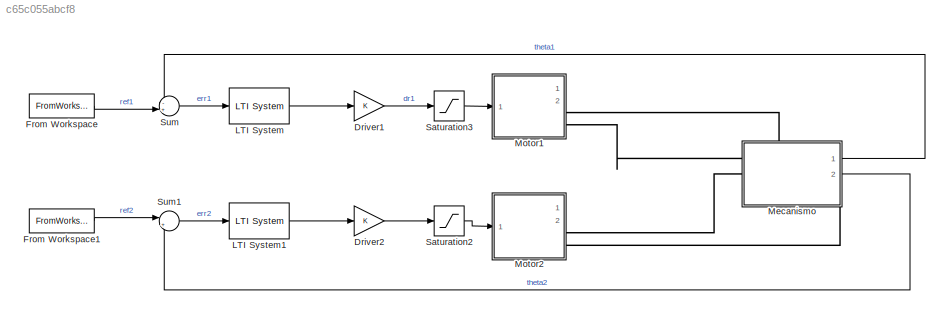
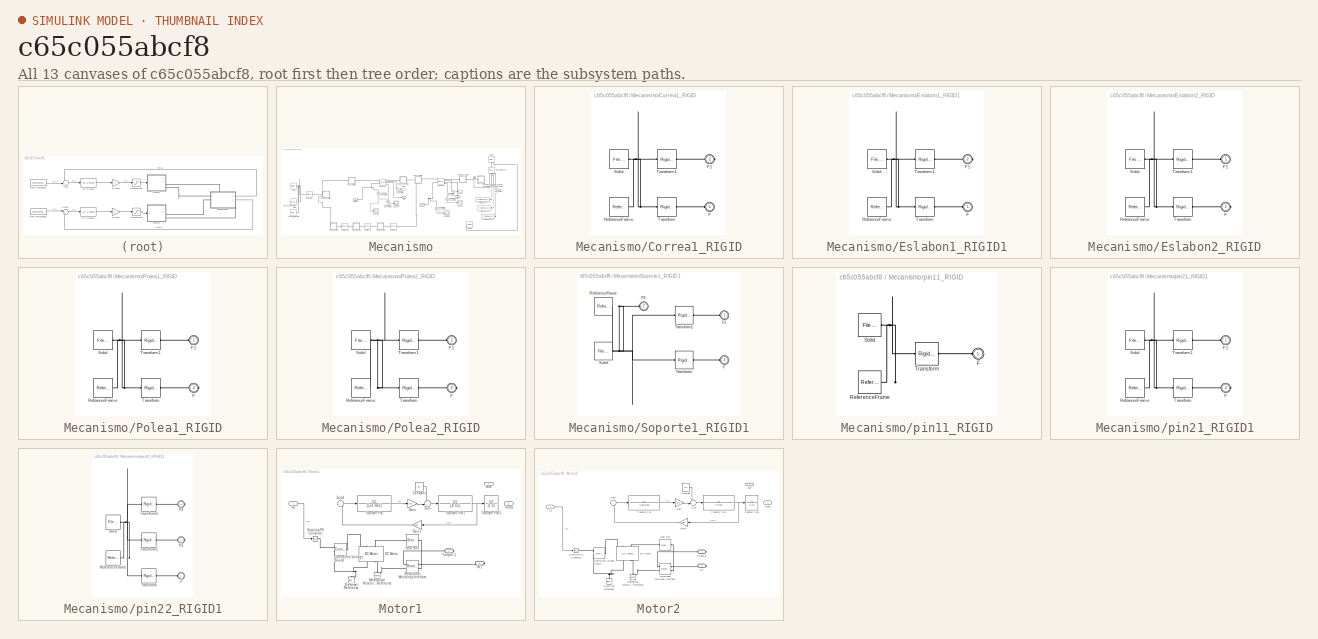
[diagram: thumbnail index - all 13 canvases of the model, root first then tree order]
MODEL slx_c65c055abcf8
KIND model
CONFIG AbsTol = auto
CONFIG EnableMultiTasking = off
CONFIG FixedStep = auto
CONFIG MaxStep = auto
CONFIG MinStep = auto
CONFIG RelTol = 1e-4
CONFIG SampleTimeConstraint = Unconstrained
CONFIG SolverName = VariableStepAuto
CONFIG StartTime = 0.0
CONFIG StopTime = 29.3
WORKSPACE source: external: MATLAB File  (data not in archive)
BLOCK [Gain] Driver1
BLOCK [Gain] Driver2
BLOCK [FromWorkspace] From Workspace
  SampleTime = -1
  VariableName = input_a1
BLOCK [FromWorkspace] From Workspace1
  SampleTime = -1
  VariableName = input_a2
BLOCK [Reference] LTI System  REF=cstblocks/LTI System
  Ports = [1, 1]
  SourceBlock = cstblocks/LTI System
  SourceProductBaseCode = CT
  SourceType = LTI Block
BLOCK [Reference] LTI System1  REF=cstblocks/LTI System
  Ports = [1, 1]
  SourceBlock = cstblocks/LTI System
  SourceProductBaseCode = CT
  SourceType = LTI Block
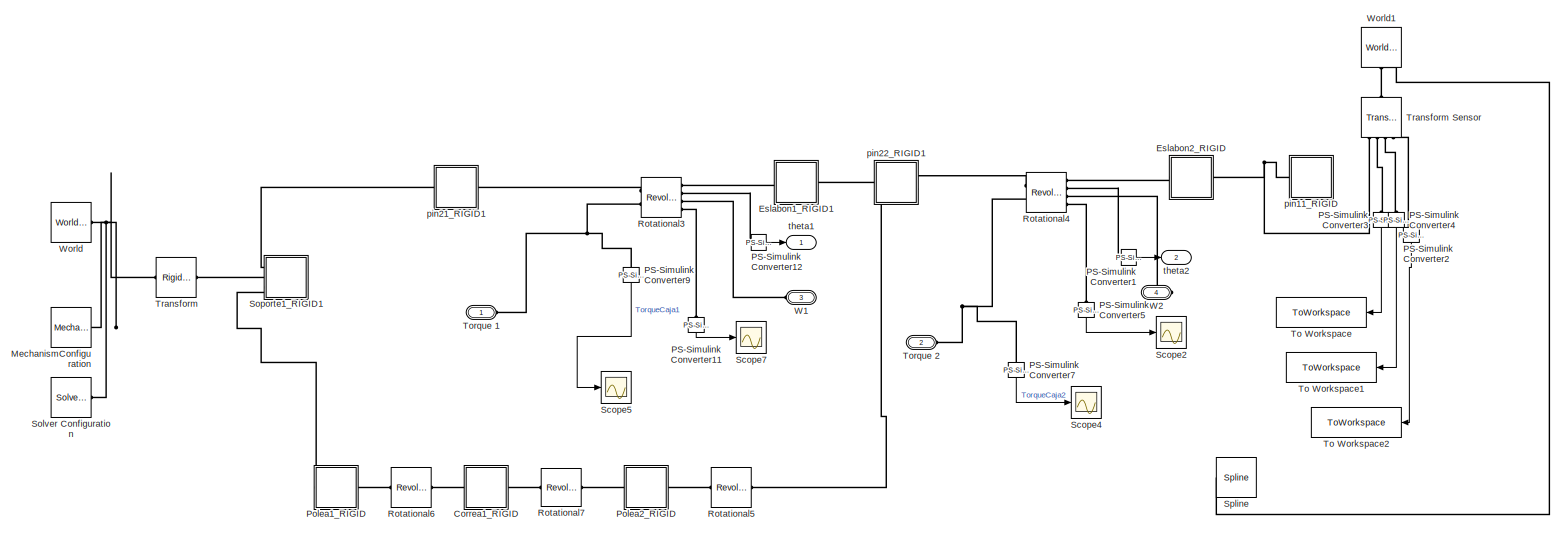
[diagram: Mecanismo - part 1/1, most of the canvas]
BLOCK [SubSystem] Mecanismo
  PortSchema = {"entries":[{"content":{"sides":[{"content":{"connectorIds":["LConn1","LConn2"]},"type":"ConnectorPlacement.EquallySpacedRectSide","uuid":"9c71d8fd-fbe0-4f3c-9468-4cd11dffeed7"},{"content":{"connectorIds":["Out1","Out2","RConn1"],"side":"RIGHT"},"type":"ConnectorPlacement.EquallySpacedRectSide","uuid":"5c6e91e5-ecd9-462c-8e86-99a56f5a5e98"},{"content":{"connectorIds":["LConn3"],"side":"TOP"},"type...<+420ch>
  Ports = [0, 2, 0, 0, 0, 3, 1]
  RequestExecContextInheritance = off
BLOCK [SubSystem] Mecanismo/Correa1_RIGID
  Ports = [0, 0, 0, 0, 0, 1, 1]
  RequestExecContextInheritance = off
BLOCK [PMIOPort] Mecanismo/Correa1_RIGID/F
  Side = Left
BLOCK [PMIOPort] Mecanismo/Correa1_RIGID/F1
  Port = 2
  Side = Right
BLOCK [Reference] Mecanismo/Correa1_RIGID/ReferenceFrame  REF=sm_lib/Frames and
Transforms/Reference
Frame
  Ports = [0, 0, 0, 0, 0, 0, 1]
  SourceBlock = sm_lib/Frames and\nTransforms/Reference\nFrame
  SourceProductBaseCode = MS
  SourceType = Reference\nFrame
BLOCK [Reference] Mecanismo/Correa1_RIGID/Solid  REF=sm_lib/Body Elements/File Solid
  Ports = [0, 0, 0, 0, 0, 0, 1]
  SourceBlock = sm_lib/Body Elements/File Solid
  SourceProductBaseCode = MS
  SourceType = File Solid
BLOCK [Reference] Mecanismo/Correa1_RIGID/Transform  REF=sm_lib/Frames and
Transforms/Rigid
Transform
  Ports = [0, 0, 0, 0, 0, 1, 1]
  SourceBlock = sm_lib/Frames and\nTransforms/Rigid\nTransform
  SourceProductBaseCode = MS
  SourceType = Rigid\nTransform
BLOCK [Reference] Mecanismo/Correa1_RIGID/Transform1  REF=sm_lib/Frames and
Transforms/Rigid
Transform
  Ports = [0, 0, 0, 0, 0, 1, 1]
  SourceBlock = sm_lib/Frames and\nTransforms/Rigid\nTransform
  SourceProductBaseCode = MS
  SourceType = Rigid\nTransform
BLOCK [SubSystem] Mecanismo/Eslabon1_RIGID1
  Ports = [0, 0, 0, 0, 0, 1, 1]
  RequestExecContextInheritance = off
BLOCK [PMIOPort] Mecanismo/Eslabon1_RIGID1/F
  Side = Left
BLOCK [PMIOPort] Mecanismo/Eslabon1_RIGID1/F1
  Port = 2
  Side = Right
BLOCK [Reference] Mecanismo/Eslabon1_RIGID1/ReferenceFrame  REF=sm_lib/Frames and
Transforms/Reference
Frame
  Ports = [0, 0, 0, 0, 0, 0, 1]
  SourceBlock = sm_lib/Frames and\nTransforms/Reference\nFrame
  SourceProductBaseCode = MS
  SourceType = Reference\nFrame
BLOCK [Reference] Mecanismo/Eslabon1_RIGID1/Solid  REF=sm_lib/Body Elements/File Solid
  Ports = [0, 0, 0, 0, 0, 0, 1]
  SourceBlock = sm_lib/Body Elements/File Solid
  SourceProductBaseCode = MS
  SourceType = File Solid
BLOCK [Reference] Mecanismo/Eslabon1_RIGID1/Transform  REF=sm_lib/Frames and
Transforms/Rigid
Transform
  Ports = [0, 0, 0, 0, 0, 1, 1]
  SourceBlock = sm_lib/Frames and\nTransforms/Rigid\nTransform
  SourceProductBaseCode = MS
  SourceType = Rigid\nTransform
BLOCK [Reference] Mecanismo/Eslabon1_RIGID1/Transform1  REF=sm_lib/Frames and
Transforms/Rigid
Transform
  Ports = [0, 0, 0, 0, 0, 1, 1]
  SourceBlock = sm_lib/Frames and\nTransforms/Rigid\nTransform
  SourceProductBaseCode = MS
  SourceType = Rigid\nTransform
BLOCK [SubSystem] Mecanismo/Eslabon2_RIGID
  Ports = [0, 0, 0, 0, 0, 1, 1]
  RequestExecContextInheritance = off
BLOCK [PMIOPort] Mecanismo/Eslabon2_RIGID/F
  Port = 2
  Side = Right
BLOCK [PMIOPort] Mecanismo/Eslabon2_RIGID/F1
  Side = Left
BLOCK [Reference] Mecanismo/Eslabon2_RIGID/ReferenceFrame  REF=sm_lib/Frames and
Transforms/Reference
Frame
  Ports = [0, 0, 0, 0, 0, 0, 1]
  SourceBlock = sm_lib/Frames and\nTransforms/Reference\nFrame
  SourceProductBaseCode = MS
  SourceType = Reference\nFrame
BLOCK [Reference] Mecanismo/Eslabon2_RIGID/Solid  REF=sm_lib/Body Elements/File Solid
  Ports = [0, 0, 0, 0, 0, 0, 1]
  SourceBlock = sm_lib/Body Elements/File Solid
  SourceProductBaseCode = MS
  SourceType = File Solid
BLOCK [Reference] Mecanismo/Eslabon2_RIGID/Transform  REF=sm_lib/Frames and
Transforms/Rigid
Transform
  Ports = [0, 0, 0, 0, 0, 1, 1]
  SourceBlock = sm_lib/Frames and\nTransforms/Rigid\nTransform
  SourceProductBaseCode = MS
  SourceType = Rigid\nTransform
BLOCK [Reference] Mecanismo/Eslabon2_RIGID/Transform1  REF=sm_lib/Frames and
Transforms/Rigid
Transform
  Ports = [0, 0, 0, 0, 0, 1, 1]
  SourceBlock = sm_lib/Frames and\nTransforms/Rigid\nTransform
  SourceProductBaseCode = MS
  SourceType = Rigid\nTransform
BLOCK [Reference] Mecanismo/MechanismConfiguration  REF=sm_lib/Utilities/Mechanism
Configuration
  Ports = [0, 0, 0, 0, 0, 0, 1]
  SourceBlock = sm_lib/Utilities/Mechanism\nConfiguration
  SourceProductBaseCode = MS
  SourceType = Mechanism\nConfiguration
BLOCK [Reference] Mecanismo/PS-Simulink Converter1  REF=nesl_utility/PS-Simulink
Converter
  Ports = [0, 1, 0, 0, 0, 1]
  SourceBlock = nesl_utility/PS-Simulink\nConverter
  SourceProductBaseCode = PW,SS
  SourceType = PS-Simulink\nConverter
BLOCK [Reference] Mecanismo/PS-Simulink Converter11  REF=nesl_utility/PS-Simulink
Converter
  NameLocation = left
  Ports = [0, 1, 0, 0, 0, 1]
  SourceBlock = nesl_utility/PS-Simulink\nConverter
  SourceProductBaseCode = PW,SS
  SourceType = PS-Simulink\nConverter
BLOCK [Reference] Mecanismo/PS-Simulink Converter12  REF=nesl_utility/PS-Simulink
Converter
  Ports = [0, 1, 0, 0, 0, 1]
  SourceBlock = nesl_utility/PS-Simulink\nConverter
  SourceProductBaseCode = PW,SS
  SourceType = PS-Simulink\nConverter
BLOCK [Reference] Mecanismo/PS-Simulink Converter2  REF=nesl_utility/PS-Simulink
Converter
  NameLocation = left
  Ports = [0, 1, 0, 0, 0, 1]
  SourceBlock = nesl_utility/PS-Simulink\nConverter
  SourceProductBaseCode = PW,SS
  SourceType = PS-Simulink\nConverter
BLOCK [Reference] Mecanismo/PS-Simulink Converter3  REF=nesl_utility/PS-Simulink
Converter
  NameLocation = left
  Ports = [0, 1, 0, 0, 0, 1]
  SourceBlock = nesl_utility/PS-Simulink\nConverter
  SourceProductBaseCode = PW,SS
  SourceType = PS-Simulink\nConverter
BLOCK [Reference] Mecanismo/PS-Simulink Converter4  REF=nesl_utility/PS-Simulink
Converter
  NameLocation = left
  Ports = [0, 1, 0, 0, 0, 1]
  SourceBlock = nesl_utility/PS-Simulink\nConverter
  SourceProductBaseCode = PW,SS
  SourceType = PS-Simulink\nConverter
BLOCK [Reference] Mecanismo/PS-Simulink Converter5  REF=nesl_utility/PS-Simulink
Converter
  NameLocation = left
  Ports = [0, 1, 0, 0, 0, 1]
  SourceBlock = nesl_utility/PS-Simulink\nConverter
  SourceProductBaseCode = PW,SS
  SourceType = PS-Simulink\nConverter
BLOCK [Reference] Mecanismo/PS-Simulink Converter7  REF=nesl_utility/PS-Simulink
Converter
  NameLocation = left
  Ports = [0, 1, 0, 0, 0, 1]
  SourceBlock = nesl_utility/PS-Simulink\nConverter
  SourceProductBaseCode = PW,SS
  SourceType = PS-Simulink\nConverter
BLOCK [Reference] Mecanismo/PS-Simulink Converter9  REF=nesl_utility/PS-Simulink
Converter
  NameLocation = left
  Ports = [0, 1, 0, 0, 0, 1]
  SourceBlock = nesl_utility/PS-Simulink\nConverter
  SourceProductBaseCode = PW,SS
  SourceType = PS-Simulink\nConverter
BLOCK [SubSystem] Mecanismo/Polea1_RIGID
  Ports = [0, 0, 0, 0, 0, 1, 1]
  RequestExecContextInheritance = off
BLOCK [PMIOPort] Mecanismo/Polea1_RIGID/F
  Port = 2
  Side = Right
BLOCK [PMIOPort] Mecanismo/Polea1_RIGID/F1
  Side = Left
BLOCK [Reference] Mecanismo/Polea1_RIGID/ReferenceFrame  REF=sm_lib/Frames and
Transforms/Reference
Frame
  Ports = [0, 0, 0, 0, 0, 0, 1]
  SourceBlock = sm_lib/Frames and\nTransforms/Reference\nFrame
  SourceProductBaseCode = MS
  SourceType = Reference\nFrame
BLOCK [Reference] Mecanismo/Polea1_RIGID/Solid  REF=sm_lib/Body Elements/File Solid
  Ports = [0, 0, 0, 0, 0, 0, 1]
  SourceBlock = sm_lib/Body Elements/File Solid
  SourceProductBaseCode = MS
  SourceType = File Solid
BLOCK [Reference] Mecanismo/Polea1_RIGID/Transform  REF=sm_lib/Frames and
Transforms/Rigid
Transform
  Ports = [0, 0, 0, 0, 0, 1, 1]
  SourceBlock = sm_lib/Frames and\nTransforms/Rigid\nTransform
  SourceProductBaseCode = MS
  SourceType = Rigid\nTransform
BLOCK [Reference] Mecanismo/Polea1_RIGID/Transform1  REF=sm_lib/Frames and
Transforms/Rigid
Transform
  Ports = [0, 0, 0, 0, 0, 1, 1]
  SourceBlock = sm_lib/Frames and\nTransforms/Rigid\nTransform
  SourceProductBaseCode = MS
  SourceType = Rigid\nTransform
BLOCK [SubSystem] Mecanismo/Polea2_RIGID
  NameLocation = top
  Ports = [0, 0, 0, 0, 0, 1, 1]
  RequestExecContextInheritance = off
BLOCK [PMIOPort] Mecanismo/Polea2_RIGID/F
  Port = 2
  Side = Right
BLOCK [PMIOPort] Mecanismo/Polea2_RIGID/F1
  Side = Left
BLOCK [Reference] Mecanismo/Polea2_RIGID/ReferenceFrame  REF=sm_lib/Frames and
Transforms/Reference
Frame
  Ports = [0, 0, 0, 0, 0, 0, 1]
  SourceBlock = sm_lib/Frames and\nTransforms/Reference\nFrame
  SourceProductBaseCode = MS
  SourceType = Reference\nFrame
BLOCK [Reference] Mecanismo/Polea2_RIGID/Solid  REF=sm_lib/Body Elements/File Solid
  Ports = [0, 0, 0, 0, 0, 0, 1]
  SourceBlock = sm_lib/Body Elements/File Solid
  SourceProductBaseCode = MS
  SourceType = File Solid
BLOCK [Reference] Mecanismo/Polea2_RIGID/Transform  REF=sm_lib/Frames and
Transforms/Rigid
Transform
  Ports = [0, 0, 0, 0, 0, 1, 1]
  SourceBlock = sm_lib/Frames and\nTransforms/Rigid\nTransform
  SourceProductBaseCode = MS
  SourceType = Rigid\nTransform
BLOCK [Reference] Mecanismo/Polea2_RIGID/Transform1  REF=sm_lib/Frames and
Transforms/Rigid
Transform
  Ports = [0, 0, 0, 0, 0, 1, 1]
  SourceBlock = sm_lib/Frames and\nTransforms/Rigid\nTransform
  SourceProductBaseCode = MS
  SourceType = Rigid\nTransform
BLOCK [Reference] Mecanismo/Rotational3  REF=sm_lib/Joints/Revolute Joint
  Ports = [0, 0, 0, 0, 0, 2, 4]
  SourceBlock = sm_lib/Joints/Revolute Joint
  SourceProductBaseCode = MS
  SourceType = Revolute Joint
BLOCK [Reference] Mecanismo/Rotational4  REF=sm_lib/Joints/Revolute Joint
  Ports = [0, 0, 0, 0, 0, 2, 4]
  SourceBlock = sm_lib/Joints/Revolute Joint
  SourceProductBaseCode = MS
  SourceType = Revolute Joint
BLOCK [Reference] Mecanismo/Rotational5  REF=sm_lib/Joints/Revolute Joint
  NameLocation = top
  Ports = [0, 0, 0, 0, 0, 1, 1]
  SourceBlock = sm_lib/Joints/Revolute Joint
  SourceProductBaseCode = MS
  SourceType = Revolute Joint
BLOCK [Reference] Mecanismo/Rotational6  REF=sm_lib/Joints/Revolute Joint
  Ports = [0, 0, 0, 0, 0, 1, 1]
  SourceBlock = sm_lib/Joints/Revolute Joint
  SourceProductBaseCode = MS
  SourceType = Revolute Joint
BLOCK [Reference] Mecanismo/Rotational7  REF=sm_lib/Joints/Revolute Joint
  NameLocation = top
  Ports = [0, 0, 0, 0, 0, 1, 1]
  SourceBlock = sm_lib/Joints/Revolute Joint
  SourceProductBaseCode = MS
  SourceType = Revolute Joint
BLOCK [Scope] Mecanismo/Scope2
  Floating = off
  NumInputPorts = 1
  Ports = [1]
  ScopeSpecificationString = Simulink.scopes.TimeScopeBlockCfg('CurrentConfiguration', extmgr.ConfigurationSet(extmgr.Configuration('Core','General UI',true),extmgr.Configuration('Core','Source UI',true),extmgr.Configuration('Sources','WiredSimulink',true,'DataLoggingVariableName','ScopeData1'),extmgr.Configuration('Visuals','Time Domain',true,'SerializedDisplays',{struct('MinYLimReal','-0.05482','MaxYLimReal','0.08539','YLab...<+1381ch>
BLOCK [Scope] Mecanismo/Scope4
  Floating = off
  NumInputPorts = 1
  Ports = [1]
  ScopeSpecificationString = Simulink.scopes.TimeScopeBlockCfg('CurrentConfiguration', extmgr.ConfigurationSet(extmgr.Configuration('Core','General UI',true),extmgr.Configuration('Core','Source UI',true),extmgr.Configuration('Sources','WiredSimulink',true),extmgr.Configuration('Visuals','Time Domain',true,'SerializedDisplays',{struct('MinYLimReal','-1.00000','MaxYLimReal','1.00000','YLabelReal','','MinYLimMag','0.00000','MaxY...<+1404ch>
BLOCK [Scope] Mecanismo/Scope5
  Floating = off
  NumInputPorts = 1
  Ports = [1]
  ScopeSpecificationString = Simulink.scopes.TimeScopeBlockCfg('CurrentConfiguration', extmgr.ConfigurationSet(extmgr.Configuration('Core','General UI',true),extmgr.Configuration('Core','Source UI',true),extmgr.Configuration('Sources','WiredSimulink',true,'DataLoggingVariableName','ScopeData2'),extmgr.Configuration('Visuals','Time Domain',true,'SerializedDisplays',{struct('MinYLimReal','-12.39709','MaxYLimReal','13.11522','YL...<+1449ch>
BLOCK [Scope] Mecanismo/Scope7
  Floating = off
  NumInputPorts = 1
  Ports = [1]
  ScopeSpecificationString = Simulink.scopes.TimeScopeBlockCfg('CurrentConfiguration', extmgr.ConfigurationSet(extmgr.Configuration('Core','General UI',true),extmgr.Configuration('Core','Source UI',true),extmgr.Configuration('Sources','WiredSimulink',true,'DataLoggingVariableName','ScopeData4'),extmgr.Configuration('Visuals','Time Domain',true,'SerializedDisplays',{struct('MinYLimReal','-12.39709','MaxYLimReal','13.11522','YL...<+1460ch>
BLOCK [Reference] Mecanismo/Solver Configuration  REF=nesl_utility/Solver
Configuration
  Ports = [0, 0, 0, 0, 0, 0, 1]
  SourceBlock = nesl_utility/Solver\nConfiguration
  SourceProductBaseCode = PW,SS
  SourceType = Solver\nConfiguration
BLOCK [SubSystem] Mecanismo/Soporte1_RIGID1
  Ports = [0, 0, 0, 0, 0, 3]
  RequestExecContextInheritance = off
BLOCK [PMIOPort] Mecanismo/Soporte1_RIGID1/F
  Port = 3
  Side = Left
BLOCK [PMIOPort] Mecanismo/Soporte1_RIGID1/F1
  Side = Left
BLOCK [PMIOPort] Mecanismo/Soporte1_RIGID1/F2
  Port = 2
  Side = Left
BLOCK [Reference] Mecanismo/Soporte1_RIGID1/ReferenceFrame  REF=sm_lib/Frames and
Transforms/Reference
Frame
  Ports = [0, 0, 0, 0, 0, 0, 1]
  SourceBlock = sm_lib/Frames and\nTransforms/Reference\nFrame
  SourceProductBaseCode = MS
  SourceType = Reference\nFrame
BLOCK [Reference] Mecanismo/Soporte1_RIGID1/Solid  REF=sm_lib/Body Elements/File Solid
  Ports = [0, 0, 0, 0, 0, 0, 1]
  SourceBlock = sm_lib/Body Elements/File Solid
  SourceProductBaseCode = MS
  SourceType = File Solid
BLOCK [Reference] Mecanismo/Soporte1_RIGID1/Transform  REF=sm_lib/Frames and
Transforms/Rigid
Transform
  Ports = [0, 0, 0, 0, 0, 1, 1]
  SourceBlock = sm_lib/Frames and\nTransforms/Rigid\nTransform
  SourceProductBaseCode = MS
  SourceType = Rigid\nTransform
BLOCK [Reference] Mecanismo/Soporte1_RIGID1/Transform1  REF=sm_lib/Frames and
Transforms/Rigid
Transform
  Ports = [0, 0, 0, 0, 0, 1, 1]
  SourceBlock = sm_lib/Frames and\nTransforms/Rigid\nTransform
  SourceProductBaseCode = MS
  SourceType = Rigid\nTransform
BLOCK [Reference] Mecanismo/Spline  REF=sm_lib/Curves and Surfaces/Spline
  Ports = [0, 0, 0, 0, 0, 1, 1]
  SourceBlock = sm_lib/Curves and Surfaces/Spline
  SourceProductBaseCode = MS
  SourceType = Spline
BLOCK [ToWorkspace] Mecanismo/To Workspace
  FixptAsFi = on
  MaxDataPoints = inf
  NameLocation = top
  Ports = [1]
  SampleTime = -1
  SaveFormat = Timeseries
  VariableName = xsim
BLOCK [ToWorkspace] Mecanismo/To Workspace1
  FixptAsFi = on
  MaxDataPoints = inf
  NameLocation = top
  Ports = [1]
  SampleTime = -1
  SaveFormat = Timeseries
  VariableName = ysim
BLOCK [ToWorkspace] Mecanismo/To Workspace2
  FixptAsFi = on
  MaxDataPoints = inf
  NameLocation = top
  Ports = [1]
  SampleTime = -1
  SaveFormat = Timeseries
  VariableName = zsim
BLOCK [PMIOPort] Mecanismo/Torque 1
  Side = Left
BLOCK [PMIOPort] Mecanismo/Torque 2
  Port = 2
  Side = Left
BLOCK [Reference] Mecanismo/Transform  REF=sm_lib/Frames and
Transforms/Rigid
Transform
  Ports = [0, 0, 0, 0, 0, 1, 1]
  SourceBlock = sm_lib/Frames and\nTransforms/Rigid\nTransform
  SourceProductBaseCode = MS
  SourceType = Rigid\nTransform
BLOCK [Reference] Mecanismo/Transform Sensor  REF=sm_lib/Frames and
Transforms/Transform
Sensor
  NameLocation = left
  Ports = [0, 0, 0, 0, 0, 1, 4]
  SourceBlock = sm_lib/Frames and\nTransforms/Transform\nSensor
  SourceProductBaseCode = MS
  SourceType = Transform\nSensor
BLOCK [PMIOPort] Mecanismo/W1
  NameLocation = top
  Port = 3
  Side = Left
BLOCK [PMIOPort] Mecanismo/W2
  NameLocation = top
  Port = 4
  Side = Right
BLOCK [Reference] Mecanismo/World  REF=sm_lib/Frames and
Transforms/World Frame
  Ports = [0, 0, 0, 0, 0, 0, 1]
  SourceBlock = sm_lib/Frames and\nTransforms/World Frame
  SourceProductBaseCode = MS
  SourceType = World Frame
BLOCK [Reference] Mecanismo/World1  REF=sm_lib/Frames and
Transforms/World Frame
  NameLocation = left
  Ports = [0, 0, 0, 0, 0, 0, 1]
  SourceBlock = sm_lib/Frames and\nTransforms/World Frame
  SourceProductBaseCode = MS
  SourceType = World Frame
BLOCK [SubSystem] Mecanismo/pin11_RIGID
  Ports = [0, 0, 0, 0, 0, 1]
  RequestExecContextInheritance = off
BLOCK [PMIOPort] Mecanismo/pin11_RIGID/F
  Side = Left
BLOCK [Reference] Mecanismo/pin11_RIGID/ReferenceFrame  REF=sm_lib/Frames and
Transforms/Reference
Frame
  Ports = [0, 0, 0, 0, 0, 0, 1]
  SourceBlock = sm_lib/Frames and\nTransforms/Reference\nFrame
  SourceProductBaseCode = MS
  SourceType = Reference\nFrame
BLOCK [Reference] Mecanismo/pin11_RIGID/Solid  REF=sm_lib/Body Elements/File Solid
  Ports = [0, 0, 0, 0, 0, 0, 1]
  SourceBlock = sm_lib/Body Elements/File Solid
  SourceProductBaseCode = MS
  SourceType = File Solid
BLOCK [Reference] Mecanismo/pin11_RIGID/Transform  REF=sm_lib/Frames and
Transforms/Rigid
Transform
  Ports = [0, 0, 0, 0, 0, 1, 1]
  SourceBlock = sm_lib/Frames and\nTransforms/Rigid\nTransform
  SourceProductBaseCode = MS
  SourceType = Rigid\nTransform
BLOCK [SubSystem] Mecanismo/pin21_RIGID1
  Ports = [0, 0, 0, 0, 0, 1, 1]
  RequestExecContextInheritance = off
BLOCK [PMIOPort] Mecanismo/pin21_RIGID1/F
  Port = 2
  Side = Right
BLOCK [PMIOPort] Mecanismo/pin21_RIGID1/F1
  Side = Left
BLOCK [Reference] Mecanismo/pin21_RIGID1/ReferenceFrame  REF=sm_lib/Frames and
Transforms/Reference
Frame
  Ports = [0, 0, 0, 0, 0, 0, 1]
  SourceBlock = sm_lib/Frames and\nTransforms/Reference\nFrame
  SourceProductBaseCode = MS
  SourceType = Reference\nFrame
BLOCK [Reference] Mecanismo/pin21_RIGID1/Solid  REF=sm_lib/Body Elements/File Solid
  Ports = [0, 0, 0, 0, 0, 0, 1]
  SourceBlock = sm_lib/Body Elements/File Solid
  SourceProductBaseCode = MS
  SourceType = File Solid
BLOCK [Reference] Mecanismo/pin21_RIGID1/Transform  REF=sm_lib/Frames and
Transforms/Rigid
Transform
  Ports = [0, 0, 0, 0, 0, 1, 1]
  SourceBlock = sm_lib/Frames and\nTransforms/Rigid\nTransform
  SourceProductBaseCode = MS
  SourceType = Rigid\nTransform
BLOCK [Reference] Mecanismo/pin21_RIGID1/Transform1  REF=sm_lib/Frames and
Transforms/Rigid
Transform
  Ports = [0, 0, 0, 0, 0, 1, 1]
  SourceBlock = sm_lib/Frames and\nTransforms/Rigid\nTransform
  SourceProductBaseCode = MS
  SourceType = Rigid\nTransform
BLOCK [SubSystem] Mecanismo/pin22_RIGID1
  PortSchema = {"entries":[{"content":{"sides":[{"content":{"connectorIds":["LConn1"]},"type":"ConnectorPlacement.EquallySpacedRectSide","uuid":"0c2e1053-8513-4509-bcb1-ddfb4a2ca896"},{"content":{"connectorIds":["RConn1"],"side":"RIGHT"},"type":"ConnectorPlacement.EquallySpacedRectSide","uuid":"556e465f-349c-4c01-b329-d5b95ce943a7"},{"content":{"connectorIds":[],"side":"TOP"},"type":"ConnectorPlacement.EquallySp...<+397ch>
  Ports = [0, 0, 0, 0, 0, 1, 2]
  RequestExecContextInheritance = off
BLOCK [PMIOPort] Mecanismo/pin22_RIGID1/F
  Side = Left
BLOCK [PMIOPort] Mecanismo/pin22_RIGID1/F1
  Port = 2
  Side = Right
BLOCK [PMIOPort] Mecanismo/pin22_RIGID1/F2
  Port = 3
  Side = Right
BLOCK [Reference] Mecanismo/pin22_RIGID1/ReferenceFrame  REF=sm_lib/Frames and
Transforms/Reference
Frame
  Ports = [0, 0, 0, 0, 0, 0, 1]
  SourceBlock = sm_lib/Frames and\nTransforms/Reference\nFrame
  SourceProductBaseCode = MS
  SourceType = Reference\nFrame
BLOCK [Reference] Mecanismo/pin22_RIGID1/Solid  REF=sm_lib/Body Elements/File Solid
  Ports = [0, 0, 0, 0, 0, 0, 1]
  SourceBlock = sm_lib/Body Elements/File Solid
  SourceProductBaseCode = MS
  SourceType = File Solid
BLOCK [Reference] Mecanismo/pin22_RIGID1/Transform  REF=sm_lib/Frames and
Transforms/Rigid
Transform
  Ports = [0, 0, 0, 0, 0, 1, 1]
  SourceBlock = sm_lib/Frames and\nTransforms/Rigid\nTransform
  SourceProductBaseCode = MS
  SourceType = Rigid\nTransform
BLOCK [Reference] Mecanismo/pin22_RIGID1/Transform1  REF=sm_lib/Frames and
Transforms/Rigid
Transform
  Ports = [0, 0, 0, 0, 0, 1, 1]
  SourceBlock = sm_lib/Frames and\nTransforms/Rigid\nTransform
  SourceProductBaseCode = MS
  SourceType = Rigid\nTransform
BLOCK [Reference] Mecanismo/pin22_RIGID1/Transform2  REF=sm_lib/Frames and
Transforms/Rigid
Transform
  Ports = [0, 0, 0, 0, 0, 1, 1]
  SourceBlock = sm_lib/Frames and\nTransforms/Rigid\nTransform
  SourceProductBaseCode = MS
  SourceType = Rigid\nTransform
BLOCK [Outport] Mecanismo/theta1
BLOCK [Outport] Mecanismo/theta2
  Port = 2
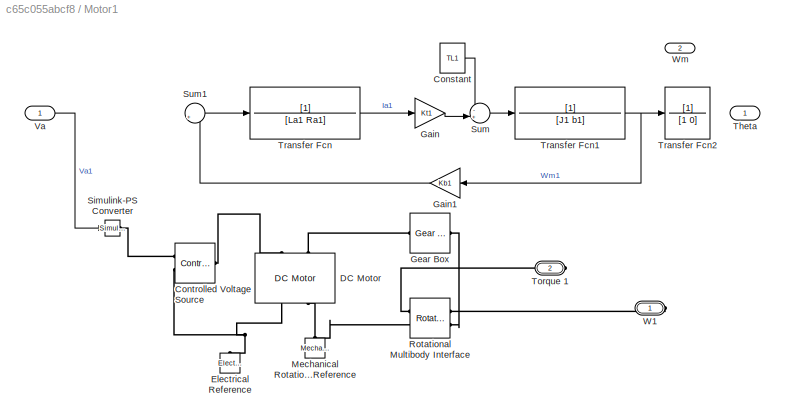
BLOCK [SubSystem] Motor1
  PortSchema = {"entries":[{"content":{"sides":[{"content":{"connectorIds":["In1"]},"type":"ConnectorPlacement.EquallySpacedRectSide","uuid":"969bf75e-6cfe-4396-8566-b009d760a095"},{"content":{"connectorIds":["Out1","RConn1","RConn2","Out2"],"side":"RIGHT"},"type":"ConnectorPlacement.EquallySpacedRectSide","uuid":"fb7f94df-b138-42ab-a30f-b7472fb0c0f2"},{"content":{"connectorIds":[],"side":"TOP"},"type":"Connecto...<+265ch>
  Ports = [1, 2, 0, 0, 0, 0, 2]
  RequestExecContextInheritance = off
BLOCK [Constant] Motor1/Constant
  Commented = on
  Value = TL1
BLOCK [Reference] Motor1/Controlled Voltage Source  REF=fl_lib/Electrical/Electrical Sources/Controlled Voltage
Source
  Ports = [0, 0, 0, 0, 0, 1, 2]
  SourceBlock = fl_lib/Electrical/Electrical Sources/Controlled Voltage\nSource
  SourceProductBaseCode = SS
  SourceType = Controlled Voltage\nSource
BLOCK [Reference] Motor1/DC Motor  REF=ee_lib/Electromechanical/Brushed Motors/DC Motor
  NameLocation = right
  Ports = [0, 0, 0, 0, 0, 2, 2]
  SourceBlock = ee_lib/Electromechanical/Brushed Motors/DC Motor
  SourceProductBaseCode = PS
  SourceType = DC Motor
BLOCK [Reference] Motor1/Electrical Reference  REF=fl_lib/Electrical/Electrical Elements/Electrical Reference
  NameLocation = right
  Ports = [0, 0, 0, 0, 0, 1]
  SourceBlock = fl_lib/Electrical/Electrical Elements/Electrical Reference
  SourceProductBaseCode = SS
  SourceType = Electrical Reference
BLOCK [Gain] Motor1/Gain
  Commented = on
  Gain = Kt1
BLOCK [Gain] Motor1/Gain1
  Commented = on
  Gain = Kb1
BLOCK [Reference] Motor1/Gear Box  REF=fl_lib/Mechanical/Mechanisms/Gear Box
  Ports = [0, 0, 0, 0, 0, 1, 1]
  SourceBlock = fl_lib/Mechanical/Mechanisms/Gear Box
  SourceProductBaseCode = SS
  SourceType = Gear Box
BLOCK [Reference] Motor1/Mechanical Rotational Reference  REF=fl_lib/Mechanical/Rotational Elements/Mechanical
Rotational Reference
  NameLocation = right
  Ports = [0, 0, 0, 0, 0, 1]
  SourceBlock = fl_lib/Mechanical/Rotational Elements/Mechanical\nRotational Reference
  SourceProductBaseCode = SS
  SourceType = Mechanical\nRotational Reference
BLOCK [Reference] Motor1/Rotational Multibody Interface  REF=fl_lib/Mechanical/Multibody Interfaces/Rotational Multibody
Interface
  Ports = [0, 0, 0, 0, 0, 2, 2]
  SourceBlock = fl_lib/Mechanical/Multibody Interfaces/Rotational Multibody\nInterface
  SourceProductBaseCode = SS
  SourceType = Rotational Multibody\nInterface
BLOCK [Reference] Motor1/Simulink-PS Converter  REF=nesl_utility/Simulink-PS
Converter
  Ports = [1, 0, 0, 0, 0, 0, 1]
  SourceBlock = nesl_utility/Simulink-PS\nConverter
  SourceProductBaseCode = PW,SS
  SourceType = Simulink-PS\nConverter
BLOCK [Sum] Motor1/Sum
  Commented = on
  Inputs = -+|
  Ports = [2, 1]
BLOCK [Sum] Motor1/Sum1
  Commented = on
  Inputs = |+-
  Ports = [2, 1]
BLOCK [Outport] Motor1/Theta
BLOCK [PMIOPort] Motor1/Torque 1
  NameLocation = top
  Port = 2
  Side = Right
BLOCK [TransferFcn] Motor1/Transfer Fcn
  Commented = on
  Denominator = [La1 Ra1]
BLOCK [TransferFcn] Motor1/Transfer Fcn1
  Commented = on
  Denominator = [J1 b1]
BLOCK [TransferFcn] Motor1/Transfer Fcn2
  Commented = on
  Denominator = [1 0]
BLOCK [Inport] Motor1/Va
BLOCK [PMIOPort] Motor1/W1
  NameLocation = top
  Side = Right
BLOCK [Outport] Motor1/Wm
  Port = 2
BLOCK [SubSystem] Motor2
  PortSchema = {"entries":[{"content":{"sides":[{"content":{"connectorIds":["In1"]},"type":"ConnectorPlacement.EquallySpacedRectSide","uuid":"969bf75e-6cfe-4396-8566-b009d760a095"},{"content":{"connectorIds":["Out1","RConn1","RConn2","Out2"],"side":"RIGHT"},"type":"ConnectorPlacement.EquallySpacedRectSide","uuid":"fb7f94df-b138-42ab-a30f-b7472fb0c0f2"},{"content":{"connectorIds":[],"side":"TOP"},"type":"Connecto...<+265ch>
  Ports = [1, 2, 0, 0, 0, 0, 2]
  RequestExecContextInheritance = off
BLOCK [Constant] Motor2/Constant
  Commented = on
  Value = TL2
BLOCK [Reference] Motor2/Controlled Voltage Source  REF=fl_lib/Electrical/Electrical Sources/Controlled Voltage
Source
  Ports = [0, 0, 0, 0, 0, 1, 2]
  SourceBlock = fl_lib/Electrical/Electrical Sources/Controlled Voltage\nSource
  SourceProductBaseCode = SS
  SourceType = Controlled Voltage\nSource
BLOCK [Reference] Motor2/DC Motor  REF=ee_lib/Electromechanical/Brushed Motors/DC Motor
  NameLocation = right
  Ports = [0, 0, 0, 0, 0, 2, 2]
  SourceBlock = ee_lib/Electromechanical/Brushed Motors/DC Motor
  SourceProductBaseCode = PS
  SourceType = DC Motor
BLOCK [Reference] Motor2/Electrical Reference  REF=fl_lib/Electrical/Electrical Elements/Electrical Reference
  NameLocation = right
  Ports = [0, 0, 0, 0, 0, 1]
  SourceBlock = fl_lib/Electrical/Electrical Elements/Electrical Reference
  SourceProductBaseCode = SS
  SourceType = Electrical Reference
BLOCK [Gain] Motor2/Gain
  Commented = on
  Gain = Kt2
BLOCK [Gain] Motor2/Gain1
  Commented = on
  Gain = Kb2
BLOCK [Reference] Motor2/Gear Box  REF=fl_lib/Mechanical/Mechanisms/Gear Box
  Ports = [0, 0, 0, 0, 0, 1, 1]
  SourceBlock = fl_lib/Mechanical/Mechanisms/Gear Box
  SourceProductBaseCode = SS
  SourceType = Gear Box
BLOCK [Reference] Motor2/Mechanical Rotational Reference  REF=fl_lib/Mechanical/Rotational Elements/Mechanical
Rotational Reference
  NameLocation = right
  Ports = [0, 0, 0, 0, 0, 1]
  SourceBlock = fl_lib/Mechanical/Rotational Elements/Mechanical\nRotational Reference
  SourceProductBaseCode = SS
  SourceType = Mechanical\nRotational Reference
BLOCK [Reference] Motor2/Rotational Multibody Interface  REF=fl_lib/Mechanical/Multibody Interfaces/Rotational Multibody
Interface
  Ports = [0, 0, 0, 0, 0, 2, 2]
  SourceBlock = fl_lib/Mechanical/Multibody Interfaces/Rotational Multibody\nInterface
  SourceProductBaseCode = SS
  SourceType = Rotational Multibody\nInterface
BLOCK [Reference] Motor2/Simulink-PS Converter  REF=nesl_utility/Simulink-PS
Converter
  Ports = [1, 0, 0, 0, 0, 0, 1]
  SourceBlock = nesl_utility/Simulink-PS\nConverter
  SourceProductBaseCode = PW,SS
  SourceType = Simulink-PS\nConverter
BLOCK [Sum] Motor2/Sum
  Commented = on
  Inputs = ++|
  Ports = [2, 1]
BLOCK [Sum] Motor2/Sum1
  Commented = on
  Inputs = |+-
  Ports = [2, 1]
BLOCK [Outport] Motor2/Theta
BLOCK [PMIOPort] Motor2/Torque 2
  NameLocation = top
  Side = Right
BLOCK [TransferFcn] Motor2/Transfer Fcn
  Commented = on
  Denominator = [La2 Ra2]
BLOCK [TransferFcn] Motor2/Transfer Fcn1
  Commented = on
  Denominator = [J2 b2]
BLOCK [TransferFcn] Motor2/Transfer Fcn2
  Commented = on
  Denominator = [1 0]
BLOCK [Inport] Motor2/Va
BLOCK [PMIOPort] Motor2/W2
  NameLocation = top
  Port = 2
  Side = Right
BLOCK [Outport] Motor2/Wm
  Port = 2
BLOCK [Saturate] Saturation2
  LowerLimit = -96
  UpperLimit = 96
BLOCK [Saturate] Saturation3
  LowerLimit = -96
  UpperLimit = 96
BLOCK [Sum] Sum
  Inputs = -+|
  Ports = [2, 1]
BLOCK [Sum] Sum1
  Inputs = |+-
  Ports = [2, 1]
LINE Driver1:1 -> Saturation3:1
LINE Driver2:1 -> Saturation2:1
LINE From Workspace1:1 -> Sum1:1
LINE From Workspace:1 -> Sum:2
LINE LTI System1:1 -> Driver2:1
LINE LTI System:1 -> Driver1:1
LINE Mecanismo/PS-Simulink Converter11:1 -> Mecanismo/Scope7:1
LINE Mecanismo/PS-Simulink Converter12:1 -> Mecanismo/theta1:1
LINE Mecanismo/PS-Simulink Converter1:1 -> Mecanismo/theta2:1
LINE Mecanismo/PS-Simulink Converter2:1 -> Mecanismo/To Workspace2:1
LINE Mecanismo/PS-Simulink Converter3:1 -> Mecanismo/To Workspace:1
LINE Mecanismo/PS-Simulink Converter4:1 -> Mecanismo/To Workspace1:1
LINE Mecanismo/PS-Simulink Converter5:1 -> Mecanismo/Scope2:1
LINE Mecanismo/PS-Simulink Converter7:1 -> Mecanismo/Scope4:1
LINE Mecanismo/PS-Simulink Converter9:1 -> Mecanismo/Scope5:1
LINE Mecanismo:1 -> Sum:1
LINE Mecanismo:2 -> Sum1:2
LINE Motor1/Constant:1 -> Motor1/Sum:1
LINE Motor1/Gain1:1 -> Motor1/Sum1:2
LINE Motor1/Gain:1 -> Motor1/Sum:2
LINE Motor1/Sum1:1 -> Motor1/Transfer Fcn:1
LINE Motor1/Sum:1 -> Motor1/Transfer Fcn1:1
NET Motor1/Transfer Fcn1:1 -> Motor1/Gain1:1, Motor1/Transfer Fcn2:1
LINE Motor1/Transfer Fcn:1 -> Motor1/Gain:1
LINE Motor1/Va:1 -> Motor1/Simulink-PS Converter:1
LINE Motor2/Constant:1 -> Motor2/Sum:1
LINE Motor2/Gain1:1 -> Motor2/Sum1:2
LINE Motor2/Gain:1 -> Motor2/Sum:2
LINE Motor2/Sum1:1 -> Motor2/Transfer Fcn:1
LINE Motor2/Sum:1 -> Motor2/Transfer Fcn1:1
NET Motor2/Transfer Fcn1:1 -> Motor2/Gain1:1, Motor2/Transfer Fcn2:1
LINE Motor2/Transfer Fcn:1 -> Motor2/Gain:1
LINE Motor2/Va:1 -> Motor2/Simulink-PS Converter:1
LINE Saturation2:1 -> Motor2:1
LINE Saturation3:1 -> Motor1:1
LINE Sum1:1 -> LTI System1:1
LINE Sum:1 -> LTI System:1
PLINE Mecanismo/Correa1_RIGID/F1:RConn1 -- Mecanismo/Correa1_RIGID/Transform1:RConn1
PLINE Mecanismo/Correa1_RIGID/F:RConn1 -- Mecanismo/Correa1_RIGID/Transform:RConn1
PNET net1: Mecanismo/Correa1_RIGID/ReferenceFrame:RConn1 -- Mecanismo/Correa1_RIGID/Solid:RConn1 -- Mecanismo/Correa1_RIGID/Transform1:LConn1 -- Mecanismo/Correa1_RIGID/Transform:LConn1
PLINE Mecanismo/Correa1_RIGID:LConn1 -- Mecanismo/Rotational6:RConn1
PLINE Mecanismo/Correa1_RIGID:RConn1 -- Mecanismo/Rotational7:RConn1
PLINE Mecanismo/Eslabon1_RIGID1/F1:RConn1 -- Mecanismo/Eslabon1_RIGID1/Transform1:RConn1
PLINE Mecanismo/Eslabon1_RIGID1/F:RConn1 -- Mecanismo/Eslabon1_RIGID1/Transform:RConn1
PNET net2: Mecanismo/Eslabon1_RIGID1/ReferenceFrame:RConn1 -- Mecanismo/Eslabon1_RIGID1/Solid:RConn1 -- Mecanismo/Eslabon1_RIGID1/Transform1:LConn1 -- Mecanismo/Eslabon1_RIGID1/Transform:LConn1
PLINE Mecanismo/Eslabon1_RIGID1:LConn1 -- Mecanismo/Rotational3:RConn1
PLINE Mecanismo/Eslabon1_RIGID1:RConn1 -- Mecanismo/pin22_RIGID1:LConn1
PLINE Mecanismo/Eslabon2_RIGID/F1:RConn1 -- Mecanismo/Eslabon2_RIGID/Transform1:RConn1
PLINE Mecanismo/Eslabon2_RIGID/F:RConn1 -- Mecanismo/Eslabon2_RIGID/Transform:RConn1
PNET net3: Mecanismo/Eslabon2_RIGID/ReferenceFrame:RConn1 -- Mecanismo/Eslabon2_RIGID/Solid:RConn1 -- Mecanismo/Eslabon2_RIGID/Transform1:LConn1 -- Mecanismo/Eslabon2_RIGID/Transform:LConn1
PLINE Mecanismo/Eslabon2_RIGID:LConn1 -- Mecanismo/Rotational4:RConn1
PNET net4: Mecanismo/Eslabon2_RIGID:RConn1 -- Mecanismo/Transform Sensor:RConn1 -- Mecanismo/pin11_RIGID:LConn1
PNET net5: Mecanismo/MechanismConfiguration:RConn1 -- Mecanismo/Solver Configuration:RConn1 -- Mecanismo/Transform:LConn1 -- Mecanismo/World:RConn1
PLINE Mecanismo/PS-Simulink Converter11:LConn1 -- Mecanismo/Rotational3:RConn4
PLINE Mecanismo/PS-Simulink Converter12:LConn1 -- Mecanismo/Rotational3:RConn2
PLINE Mecanismo/PS-Simulink Converter1:LConn1 -- Mecanismo/Rotational4:RConn2
PLINE Mecanismo/PS-Simulink Converter2:LConn1 -- Mecanismo/Transform Sensor:RConn4
PLINE Mecanismo/PS-Simulink Converter3:LConn1 -- Mecanismo/Transform Sensor:RConn2
PLINE Mecanismo/PS-Simulink Converter4:LConn1 -- Mecanismo/Transform Sensor:RConn3
PLINE Mecanismo/PS-Simulink Converter5:LConn1 -- Mecanismo/Rotational4:RConn4
PNET net6: Mecanismo/PS-Simulink Converter7:LConn1 -- Mecanismo/Rotational4:LConn2 -- Mecanismo/Torque 2:RConn1
PNET net7: Mecanismo/PS-Simulink Converter9:LConn1 -- Mecanismo/Rotational3:LConn2 -- Mecanismo/Torque 1:RConn1
PLINE Mecanismo/Polea1_RIGID/F1:RConn1 -- Mecanismo/Polea1_RIGID/Transform1:RConn1
PLINE Mecanismo/Polea1_RIGID/F:RConn1 -- Mecanismo/Polea1_RIGID/Transform:RConn1
PNET net8: Mecanismo/Polea1_RIGID/ReferenceFrame:RConn1 -- Mecanismo/Polea1_RIGID/Solid:RConn1 -- Mecanismo/Polea1_RIGID/Transform1:LConn1 -- Mecanismo/Polea1_RIGID/Transform:LConn1
PLINE Mecanismo/Polea1_RIGID:LConn1 -- Mecanismo/Soporte1_RIGID1:LConn3
PLINE Mecanismo/Polea1_RIGID:RConn1 -- Mecanismo/Rotational6:LConn1
PLINE Mecanismo/Polea2_RIGID/F1:RConn1 -- Mecanismo/Polea2_RIGID/Transform1:RConn1
PLINE Mecanismo/Polea2_RIGID/F:RConn1 -- Mecanismo/Polea2_RIGID/Transform:RConn1
PNET net9: Mecanismo/Polea2_RIGID/ReferenceFrame:RConn1 -- Mecanismo/Polea2_RIGID/Solid:RConn1 -- Mecanismo/Polea2_RIGID/Transform1:LConn1 -- Mecanismo/Polea2_RIGID/Transform:LConn1
PLINE Mecanismo/Polea2_RIGID:LConn1 -- Mecanismo/Rotational5:RConn1
PLINE Mecanismo/Polea2_RIGID:RConn1 -- Mecanismo/Rotational7:LConn1
PLINE Mecanismo/Rotational3:LConn1 -- Mecanismo/pin21_RIGID1:RConn1
PLINE Mecanismo/Rotational3:RConn3 -- Mecanismo/W1:RConn1
PLINE Mecanismo/Rotational4:LConn1 -- Mecanismo/pin22_RIGID1:RConn1
PLINE Mecanismo/Rotational4:RConn3 -- Mecanismo/W2:RConn1
PLINE Mecanismo/Rotational5:LConn1 -- Mecanismo/pin22_RIGID1:RConn2
PLINE Mecanismo/Soporte1_RIGID1/F1:RConn1 -- Mecanismo/Soporte1_RIGID1/Transform1:RConn1
PNET net10: Mecanismo/Soporte1_RIGID1/F2:RConn1 -- Mecanismo/Soporte1_RIGID1/ReferenceFrame:RConn1 -- Mecanismo/Soporte1_RIGID1/Solid:RConn1 -- Mecanismo/Soporte1_RIGID1/Transform1:LConn1 -- Mecanismo/Soporte1_RIGID1/Transform:LConn1
PLINE Mecanismo/Soporte1_RIGID1/F:RConn1 -- Mecanismo/Soporte1_RIGID1/Transform:RConn1
PLINE Mecanismo/Soporte1_RIGID1:LConn1 -- Mecanismo/pin21_RIGID1:LConn1
PLINE Mecanismo/Soporte1_RIGID1:LConn2 -- Mecanismo/Transform:RConn1
PNET net11: Mecanismo/Spline:LConn1 -- Mecanismo/Transform Sensor:LConn1 -- Mecanismo/World1:RConn1
PLINE Mecanismo/pin11_RIGID/F:RConn1 -- Mecanismo/pin11_RIGID/Transform:RConn1
PNET net12: Mecanismo/pin11_RIGID/ReferenceFrame:RConn1 -- Mecanismo/pin11_RIGID/Solid:RConn1 -- Mecanismo/pin11_RIGID/Transform:LConn1
PLINE Mecanismo/pin21_RIGID1/F1:RConn1 -- Mecanismo/pin21_RIGID1/Transform1:RConn1
PLINE Mecanismo/pin21_RIGID1/F:RConn1 -- Mecanismo/pin21_RIGID1/Transform:RConn1
PNET net13: Mecanismo/pin21_RIGID1/ReferenceFrame:RConn1 -- Mecanismo/pin21_RIGID1/Solid:RConn1 -- Mecanismo/pin21_RIGID1/Transform1:LConn1 -- Mecanismo/pin21_RIGID1/Transform:LConn1
PLINE Mecanismo/pin22_RIGID1/F1:RConn1 -- Mecanismo/pin22_RIGID1/Transform1:RConn1
PLINE Mecanismo/pin22_RIGID1/F2:RConn1 -- Mecanismo/pin22_RIGID1/Transform2:RConn1
PLINE Mecanismo/pin22_RIGID1/F:RConn1 -- Mecanismo/pin22_RIGID1/Transform:RConn1
PNET net14: Mecanismo/pin22_RIGID1/ReferenceFrame:RConn1 -- Mecanismo/pin22_RIGID1/Solid:RConn1 -- Mecanismo/pin22_RIGID1/Transform1:LConn1 -- Mecanismo/pin22_RIGID1/Transform2:LConn1 -- Mecanismo/pin22_RIGID1/Transform:LConn1
PLINE Mecanismo:LConn1 -- Motor1:RConn2
PLINE Mecanismo:LConn2 -- Motor2:RConn1
PLINE Mecanismo:LConn3 -- Motor1:RConn1
PLINE Mecanismo:RConn1 -- Motor2:RConn2
PLINE Motor1/Controlled Voltage Source:LConn1 -- Motor1/DC Motor:LConn1
PLINE Motor1/Controlled Voltage Source:RConn1 -- Motor1/Simulink-PS Converter:RConn1
PNET net15: Motor1/Controlled Voltage Source:RConn2 -- Motor1/DC Motor:RConn1 -- Motor1/Electrical Reference:LConn1
PLINE Motor1/DC Motor:LConn2 -- Motor1/Gear Box:LConn1
PNET net16: Motor1/DC Motor:RConn2 -- Motor1/Mechanical Rotational Reference:LConn1 -- Motor1/Rotational Multibody Interface:LConn2
PLINE Motor1/Gear Box:RConn1 -- Motor1/Rotational Multibody Interface:RConn2
PLINE Motor1/Rotational Multibody Interface:LConn1 -- Motor1/Torque 1:RConn1
PLINE Motor1/Rotational Multibody Interface:RConn1 -- Motor1/W1:RConn1
PLINE Motor2/Controlled Voltage Source:LConn1 -- Motor2/DC Motor:LConn1
PLINE Motor2/Controlled Voltage Source:RConn1 -- Motor2/Simulink-PS Converter:RConn1
PNET net17: Motor2/Controlled Voltage Source:RConn2 -- Motor2/DC Motor:RConn1 -- Motor2/Electrical Reference:LConn1
PLINE Motor2/DC Motor:LConn2 -- Motor2/Gear Box:LConn1
PNET net18: Motor2/DC Motor:RConn2 -- Motor2/Mechanical Rotational Reference:LConn1 -- Motor2/Rotational Multibody Interface:LConn2
PLINE Motor2/Gear Box:RConn1 -- Motor2/Rotational Multibody Interface:RConn2
PLINE Motor2/Rotational Multibody Interface:LConn1 -- Motor2/Torque 2:RConn1
PLINE Motor2/Rotational Multibody Interface:RConn1 -- Motor2/W2:RConn1
note: NET lines group one-source signal fan-out (src -> all destinations, sorted); 1:1 wires keep LINE; PNET lines group multi-terminal physical nets as a canonical sorted terminal list (undirected conserving connections); 2-terminal nets keep the pairwise PLINE form
